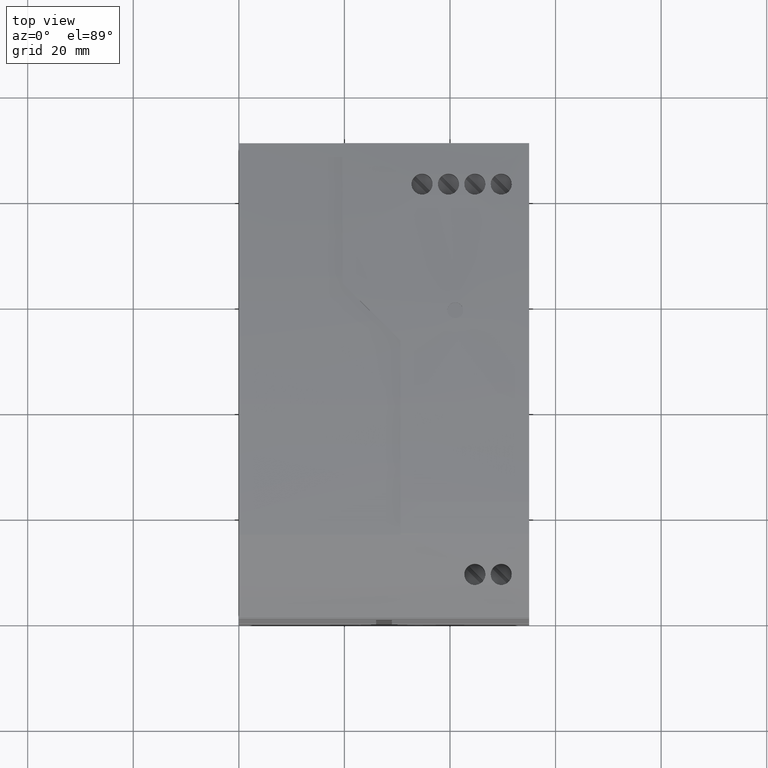
[diagram: clean part render]
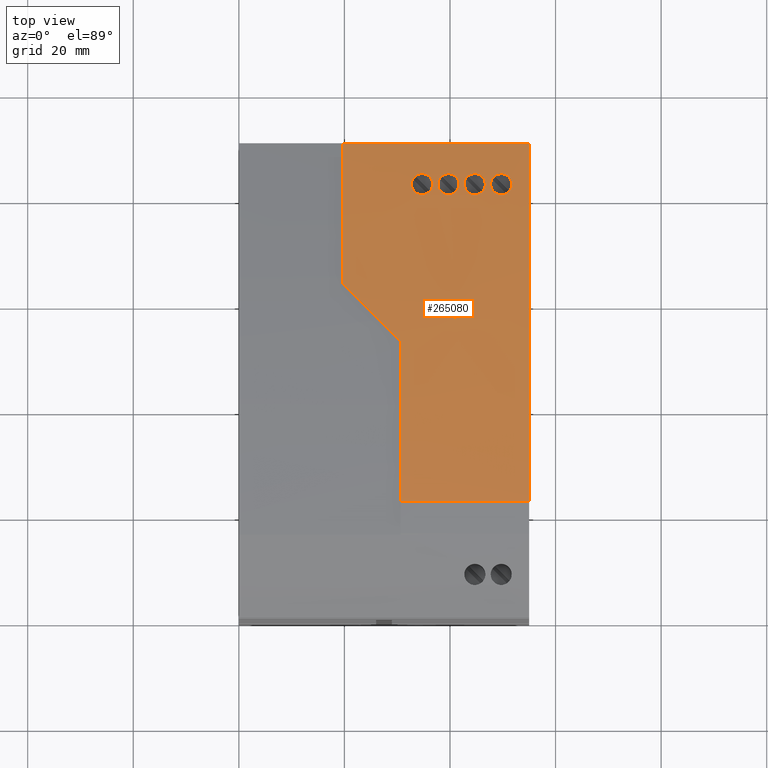
[diagram: same view with one face highlighted and labeled with its STEP entity id]
A machine part, top view. The second image highlights one B-rep face of the part: STEP entity #265080.
In plain terms, the highlighted cylindrical surface (partial cylindrical patch) has radius 350 mm, axis along (1, 0, 0).
Its self-contained STEP definition (entity closure, byte-faithful):
#258770=CARTESIAN_POINT('',(-23.0409203779481,89.8990722762113,1.));
#258780=VERTEX_POINT('',#258770);
#258810=CARTESIAN_POINT('',(-33.8174223565983,-259.934984106395,1.));
#258820=DIRECTION('',(0.,0.,1.));
#258830=DIRECTION('',(0.,1.,0.));
#258840=AXIS2_PLACEMENT_3D('',#258810,#258820,#258830);
#258850=CIRCLE('',#258840,350.000000000006);
#258860=CARTESIAN_POINT('',(44.998476392647,81.0753589982581,1.));
#258870=VERTEX_POINT('',#258860);
#258880=EDGE_CURVE('',#258870,#258780,#258850,.T.);
#260110=CARTESIAN_POINT('',(-23.0409203779481,89.8990722762113,1.));
#260120=DIRECTION('',(0.,0.,-1.));
#260130=VECTOR('',#260120,1.);
#260140=LINE('',#260110,#260130);
#260150=CARTESIAN_POINT('',(-23.0409203779482,89.8990722762115,-23.4));
#260160=VERTEX_POINT('',#260150);
#260170=EDGE_CURVE('',#258780,#260160,#260140,.T.);
#260650=CARTESIAN_POINT('',(44.998476392647,81.0753589982581,1.));
#260660=DIRECTION('',(0.,0.,1.));
#260670=VECTOR('',#260660,1.);
#260680=LINE('',#260650,#260670);
#260690=CARTESIAN_POINT('',(44.998476392647,81.0753589982581,-34.4));
#260700=VERTEX_POINT('',#260690);
#260710=EDGE_CURVE('',#260700,#258870,#260680,.T.);
#261110=CARTESIAN_POINT('',(-33.8174223565983,-259.934984106395,1.));
#261120=DIRECTION('',(0.,0.,1.));
#261130=DIRECTION('',(0.,1.,0.));
#261140=AXIS2_PLACEMENT_3D('',#261110,#261120,#261130);
#261150=CYLINDRICAL_SURFACE('',#261140,350.000000000006);
#261160=CARTESIAN_POINT('',(13.1984817606206,86.6921034492257,-11.5));
#261170=CARTESIAN_POINT('',(13.0055555978401,86.7181688267425,
-11.5000172862122));
#261180=CARTESIAN_POINT('',(12.6154612248136,86.7708727055403,
-11.5756089696318));
#261190=CARTESIAN_POINT('',(12.1127511947706,86.8387915742188,
-11.9088011428697));
#261200=CARTESIAN_POINT('',(11.7787944546882,86.8839109524259,
-12.4093352634621));
#261210=CARTESIAN_POINT('',(11.6588543533701,86.9001155147061,
-13.0000190004568));
#261220=CARTESIAN_POINT('',(11.7787704303386,86.8839141982466,
-13.5906900328923));
#261230=CARTESIAN_POINT('',(12.1127775662568,86.8387880112871,
-14.0912359554955));
#261240=CARTESIAN_POINT('',(12.6154786035389,86.7708703575796,
-14.4243891701172));
#261250=CARTESIAN_POINT('',(13.0055621510402,86.7181679413694,
-14.499987783014));
#261260=CARTESIAN_POINT('',(13.1984826061552,86.6921033349893,
-14.4999999900542));
#261270=B_SPLINE_CURVE_WITH_KNOTS('',3,(#261160,#261170,#261180,#261190,
#261200,#261210,#261220,#261230,#261240,#261250,#261260),.UNSPECIFIED.,
.F.,.F.,(4,1,1,1,1,1,1,1,4),(0.,0.124601525288921,0.250020484171647,
0.375081460448419,0.500001300574072,0.624919263761973,0.74998345534349,
0.87540031799334,1.),.UNSPECIFIED.);
#261280=DIRECTION('',(0.133889013118048,0.990996333074081,0.));
#261290=VECTOR('',#261280,1.);
#261300=SURFACE_OF_LINEAR_EXTRUSION('',#261270,#261290);
#261310=CARTESIAN_POINT('',(13.2251077904162,86.889179350207,-11.5));
#261320=CARTESIAN_POINT('',(12.9994849806847,86.9197823731419,
-11.5000202172649));
#261330=CARTESIAN_POINT('',(12.7738394898481,86.950150535201,
-11.5514706951073));
#261340=CARTESIAN_POINT('',(12.5699462445855,86.9774141071345,
-11.6507310873835));
#261350=CARTESIAN_POINT('',(12.364352396805,87.0049050750222,
-11.7508193760072));
#261360=CARTESIAN_POINT('',(12.1833022051968,87.0289237237714,
-11.8970733423477));
#261370=CARTESIAN_POINT('',(12.0431106938747,87.047452781023,
-12.0772663182131));
#261380=CARTESIAN_POINT('',(11.8389385586279,87.0744381323291,
-12.3396957926652));
#261390=CARTESIAN_POINT('',(11.7251185274894,87.0893334418509,
-12.6667743370374));
#261400=CARTESIAN_POINT('',(11.7251090276306,87.0893346885867,
-13.0000061838202));
#261410=CARTESIAN_POINT('',(11.7250995273647,87.0893359353758,
-13.3332523130715));
#261420=CARTESIAN_POINT('',(11.8389157796215,87.0744411383346,
-13.6603103035183));
#261430=CARTESIAN_POINT('',(12.043102866026,87.0474538156266,
-13.9227439529264));
#261440=CARTESIAN_POINT('',(12.1833007143175,87.0289239240383,
-14.1029347456655));
#261450=CARTESIAN_POINT('',(12.3643499353629,87.0049054045122,
-14.2491829699326));
#261460=CARTESIAN_POINT('',(12.5699468388128,86.9774140276774,
-14.349269950773));
#261470=CARTESIAN_POINT('',(12.773839817471,86.9501504910375,
-14.4485274410662));
#261480=CARTESIAN_POINT('',(12.999486683036,86.9197821427985,
-14.4999857128183));
#261490=CARTESIAN_POINT('',(13.2251086358911,86.8891792355285,
-14.4999999900542));
#261500=B_SPLINE_CURVE_WITH_KNOTS('',3,(#261310,#261320,#261330,#261340,
#261350,#261360,#261370,#261380,#261390,#261400,#261410,#261420,#261430,
#261440,#261450,#261460,#261470,#261480,#261490),.UNSPECIFIED.,.F.,.F.,(
4,3,3,3,3,3,4),(0.,0.683784518436677,1.37118459360683,2.36633691669822,
3.36148932592983,4.04888981220167,4.73267473464276),.UNSPECIFIED.);
#261510=SURFACE_CURVE('',#261500,(#261150,#261300),.CURVE_3D.);
#261520=CARTESIAN_POINT('',(13.2251077923846,86.88917934994,-11.5));
#261530=VERTEX_POINT('',#261520);
#261540=CARTESIAN_POINT('',(13.2251086438858,86.8891792344441,-14.5));
#261550=VERTEX_POINT('',#261540);
#261560=EDGE_CURVE('',#261530,#261550,#261510,.T.);
#261570=ORIENTED_EDGE('',*,*,#261560,.T.);
#261580=CARTESIAN_POINT('',(13.1984817625892,86.6921034489597,-11.5));
#261590=CARTESIAN_POINT('',(13.3913884849968,86.6660406979434,
-11.5000290360754));
#261600=CARTESIAN_POINT('',(13.7814001998191,86.6133479867201,
-11.575844171203));
#261610=CARTESIAN_POINT('',(14.2843524047987,86.5453963988859,
-11.9083232139435));
#261620=CARTESIAN_POINT('',(14.6189250564467,86.5001938076649,
-12.4090424369122));
#261630=CARTESIAN_POINT('',(14.7389975518286,86.4839713582241,
-13.0001792020605));
#261640=CARTESIAN_POINT('',(14.6188661041923,86.5002017724362,
-13.5912793115496));
#261650=CARTESIAN_POINT('',(14.2843255024885,86.5454000335348,
-14.0919121350706));
#261660=CARTESIAN_POINT('',(13.7814075523009,86.6133469933596,
-14.4243060988274));
#261670=CARTESIAN_POINT('',(13.3913969134836,86.6660395592088,
-14.4999714286456));
#261680=CARTESIAN_POINT('',(13.1984826141505,86.6921033339091,-14.5));
#261690=B_SPLINE_CURVE_WITH_KNOTS('',3,(#261580,#261590,#261600,#261610,
#261620,#261630,#261640,#261650,#261660,#261670,#261680),.UNSPECIFIED.,
.F.,.F.,(4,1,1,1,1,1,1,1,4),(0.,0.124580735199533,0.2499639478125,
0.375047362656134,0.500000013310294,0.624952655613596,0.750034170979229,
0.875416818226335,1.),.UNSPECIFIED.);
#261700=DIRECTION('',(0.133889013118048,0.990996333074081,0.));
#261710=VECTOR('',#261700,1.);
#261720=SURFACE_OF_LINEAR_EXTRUSION('',#261690,#261710);
#261730=CARTESIAN_POINT('',(13.2251077923846,86.88917934994,-11.5));
#261740=CARTESIAN_POINT('',(13.4508092628703,86.8585656576177,
-11.5000339746997));
#261750=CARTESIAN_POINT('',(13.6764806633102,86.8277179364559,
-11.5516783160056));
#261760=CARTESIAN_POINT('',(13.8803569800884,86.7996721458367,
-11.6508827282254));
#261770=CARTESIAN_POINT('',(14.0859960687152,86.7713838634413,
-11.750944889633));
#261780=CARTESIAN_POINT('',(14.2670163059993,86.7462914177559,
-11.8970389037577));
#261790=CARTESIAN_POINT('',(14.4072307221891,86.7267859742344,
-12.0773048976902));
#261800=CARTESIAN_POINT('',(14.6113415623534,86.6983918007025,
-12.3397190236728));
#261810=CARTESIAN_POINT('',(14.725051822759,86.6824248628474,
-12.6667749388135));
#261820=CARTESIAN_POINT('',(14.7250589325744,86.6824238671441,
-13.0000692941498));
#261830=CARTESIAN_POINT('',(14.725066042118,86.6824228714789,
-13.3333509056074));
#261840=CARTESIAN_POINT('',(14.6113725594298,86.6983874599416,
-13.6604344133985));
#261850=CARTESIAN_POINT('',(14.4072785555143,86.7267793200634,
-13.9228497492662));
#261860=CARTESIAN_POINT('',(14.2670720962065,86.7462836764113,
-14.1031212143962));
#261870=CARTESIAN_POINT('',(14.086047302858,86.7713767948167,
-14.2492208864151));
#261880=CARTESIAN_POINT('',(13.8803912524074,86.7996674312399,
-14.349249986398));
#261890=CARTESIAN_POINT('',(13.6764909510477,86.82771654178,
-14.448425107123));
#261900=CARTESIAN_POINT('',(13.4508114717162,86.8585653574499,
-14.4999665701758));
#261910=CARTESIAN_POINT('',(13.2251086438858,86.8891792344441,-14.5));
#261920=B_SPLINE_CURVE_WITH_KNOTS('',3,(#261730,#261740,#261750,#261760,
#261770,#261780,#261790,#261800,#261810,#261820,#261830,#261840,#261850,
#261860,#261870,#261880,#261890,#261900,#261910),.UNSPECIFIED.,.F.,.F.,(
4,3,3,3,3,3,4),(0.,0.684060528390628,1.37172166931323,2.36697046026307,
3.36221858739487,4.0498820158736,4.73394187113418),.UNSPECIFIED.);
#261930=SURFACE_CURVE('',#261920,(#261150,#261720),.CURVE_3D.);
#261940=EDGE_CURVE('',#261530,#261550,#261930,.T.);
#261950=ORIENTED_EDGE('',*,*,#261940,.F.);
#261960=EDGE_LOOP('',(#261950,#261570));
#261970=FACE_BOUND('',#261960,.T.);
#261980=CARTESIAN_POINT('',(37.1984763926329,80.1290722762113,-19.3));
#261990=DIRECTION('',(0.,1.,0.));
#262000=DIRECTION('',(0.,0.,-1.));
#262010=AXIS2_PLACEMENT_3D('',#261980,#261990,#262000);
#262020=CYLINDRICAL_SURFACE('',#262010,1.99999999999997);
#262030=CARTESIAN_POINT('',(38.7457318767154,82.4603847987887,
-20.5672807372388));
#262040=CARTESIAN_POINT('',(38.651235389724,82.4804112471078,
-20.6826539165412));
#262050=CARTESIAN_POINT('',(38.5453351913637,82.5028142018425,
-20.7859736227382));
#262060=CARTESIAN_POINT('',(38.4279596874857,82.5275755600726,
-20.8774570763345));
#262070=CARTESIAN_POINT('',(38.3107094020329,82.5523105024136,
-20.9688429336384));
#262080=CARTESIAN_POINT('',(38.1831498237356,82.5791560347972,
-21.0470445547114));
#262090=CARTESIAN_POINT('',(38.0497065265993,82.607153135274,
-21.1098086249732));
#262100=CARTESIAN_POINT('',(37.9166101811473,82.6350774434759,
-21.1724095090702));
#262110=CARTESIAN_POINT('',(37.7770728890483,82.6642710680225,
-21.2200911624479));
#262120=CARTESIAN_POINT('',(37.6338811882307,82.6941320261212,
-21.2520303952475));
#262130=CARTESIAN_POINT('',(37.49094863535,82.723938941942,
-21.2839118245136));
#262140=CARTESIAN_POINT('',(37.3447123081029,82.754340053432,-21.3));
#262150=CARTESIAN_POINT('',(37.1984763926329,82.7846420092442,-21.3));
#262160=B_SPLINE_CURVE_WITH_KNOTS('',3,(#262030,#262040,#262050,#262060,
#262070,#262080,#262090,#262100,#262110,#262120,#262130,#262140,#262150)
,.UNSPECIFIED.,.F.,.F.,(4,3,3,3,4),(0.,0.450039171831812,
0.901944705588504,1.35081921134346,1.79897413478677),.UNSPECIFIED.);
#262170=SURFACE_CURVE('',#262160,(#261150,#262020),.CURVE_3D.);
#262180=CARTESIAN_POINT('',(38.7457318767154,82.4603847987887,
-20.5672807372388));
#262190=VERTEX_POINT('',#262180);
#262200=CARTESIAN_POINT('',(37.1984763926329,82.7846420092442,-21.3));
#262210=VERTEX_POINT('',#262200);
#262220=EDGE_CURVE('',#262190,#262210,#262170,.T.);
#262230=ORIENTED_EDGE('',*,*,#262220,.F.);
#262240=CARTESIAN_POINT('',(37.1984763926329,82.7846420092442,-21.3));
#262250=CARTESIAN_POINT('',(36.9014003252286,82.8461999776708,-21.3));
#262260=CARTESIAN_POINT('',(36.6042573200586,82.9073452104827,
-21.2329441981917));
#262270=CARTESIAN_POINT('',(36.3346332719541,82.9625065392687,
-21.1038223479202));
#262280=CARTESIAN_POINT('',(36.0627982444288,83.0181202036815,
-20.9736416686764));
#262290=CARTESIAN_POINT('',(35.8229653727815,83.0668429856509,
-20.7830528045834));
#262300=CARTESIAN_POINT('',(35.6344580938983,83.1050081713195,
-20.5465338989467));
#262310=CARTESIAN_POINT('',(35.3536460335451,83.161861384017,
-20.1942007604184));
#262320=CARTESIAN_POINT('',(35.1984763515742,83.192988704782,
-19.7530858137162));
#262330=CARTESIAN_POINT('',(35.1984763926329,83.1929886965235,
-19.2999998187596));
#262340=CARTESIAN_POINT('',(35.1984764337913,83.192988688245,
-18.845814686508));
#262350=CARTESIAN_POINT('',(35.3539957063796,83.1617911009571,
-18.4050125929355));
#262360=CARTESIAN_POINT('',(35.6350586850062,83.1048865750902,
-18.0527129153722));
#262370=CARTESIAN_POINT('',(35.8229366135577,83.0668484652783,
-17.8172164655254));
#262380=CARTESIAN_POINT('',(36.0644210407003,83.0177886622212,
-17.6254780069537));
#262390=CARTESIAN_POINT('',(36.3351930724812,82.9623920113936,
-17.4959096726749));
#262400=CARTESIAN_POINT('',(36.6048169033089,82.9072302684584,
-17.3668907691625));
#262410=CARTESIAN_POINT('',(36.901929564606,82.8460903124892,-17.3));
#262420=CARTESIAN_POINT('',(37.1984763926329,82.7846420092442,-17.3));
#262430=B_SPLINE_CURVE_WITH_KNOTS('',3,(#262240,#262250,#262260,#262270,
#262280,#262290,#262300,#262310,#262320,#262330,#262340,#262350,#262360,
#262370,#262380,#262390,#262400,#262410,#262420),.UNSPECIFIED.,.F.,.F.,(
4,3,3,3,3,3,4),(0.,0.910804955498051,1.82463305496484,3.17419705058939,
4.52473154079721,5.43821978694617,6.34839361058266),.UNSPECIFIED.);
#262440=SURFACE_CURVE('',#262430,(#261150,#262020),.CURVE_3D.);
#262450=CARTESIAN_POINT('',(37.1984763926329,82.7846420092442,-17.3));
#262460=VERTEX_POINT('',#262450);
#262470=EDGE_CURVE('',#262210,#262460,#262440,.T.);
#262480=ORIENTED_EDGE('',*,*,#262470,.F.);
#262490=CARTESIAN_POINT('',(37.1984763926329,82.7846420092442,-17.3));
#262500=CARTESIAN_POINT('',(37.5697089201015,82.7077178719196,-17.3));
#262510=CARTESIAN_POINT('',(37.9375626708977,82.6308172601284,
-17.4039836188072));
#262520=CARTESIAN_POINT('',(38.2563748472113,82.5637279446559,
-17.6026930566921));
#262530=CARTESIAN_POINT('',(38.5749052393787,82.4966979264966,
-17.8012268639912));
#262540=CARTESIAN_POINT('',(38.8344595556135,82.4416106213096,
-18.0882793626352));
#262550=CARTESIAN_POINT('',(38.9997665402665,82.4064492626362,
-18.4308890726507));
#262560=CARTESIAN_POINT('',(39.1646597467234,82.3713759159945,
-18.7726411998601));
#262570=CARTESIAN_POINT('',(39.2294146424876,82.3575248970663,
-19.1590294825571));
#262580=CARTESIAN_POINT('',(39.1844322012879,82.3671181820861,
-19.5365999282953));
#262590=CARTESIAN_POINT('',(39.1391997371754,82.3767647888243,
-19.9162689987436));
#262600=CARTESIAN_POINT('',(38.985981768636,82.4094691277687,
-20.2739534957671));
#262610=CARTESIAN_POINT('',(38.7457318767154,82.4603847987887,
-20.5672807372388));
#262620=B_SPLINE_CURVE_WITH_KNOTS('',3,(#262490,#262500,#262510,#262520,
#262530,#262540,#262550,#262560,#262570,#262580,#262590,#262600,#262610)
,.UNSPECIFIED.,.F.,.F.,(4,3,3,3,4),(0.,1.13645894664346,2.27549680070427
,3.41306164092073,4.55277941214885),.UNSPECIFIED.);
#262630=SURFACE_CURVE('',#262620,(#261150,#262020),.CURVE_3D.);
#262640=EDGE_CURVE('',#262460,#262190,#262630,.T.);
#262650=ORIENTED_EDGE('',*,*,#262640,.F.);
#262660=EDGE_LOOP('',(#262650,#262480,#262230));
#262670=FACE_BOUND('',#262660,.T.);
#262680=CARTESIAN_POINT('',(37.1984763926329,80.1290722762113,
-4.29999999999999));
#262690=DIRECTION('',(0.,-1.,0.));
#262700=DIRECTION('',(0.,0.,-1.));
#262710=AXIS2_PLACEMENT_3D('',#262680,#262690,#262700);
#262720=CYLINDRICAL_SURFACE('',#262710,1.99999999999998);
#262730=CARTESIAN_POINT('',(38.2124243590828,82.5729737312588,
-6.02392271327117));
#262740=CARTESIAN_POINT('',(38.1355887191296,82.5891323612745,
-6.06911461212003));
#262750=CARTESIAN_POINT('',(38.0562937115018,82.6057811145165,
-6.10884821932043));
#262760=CARTESIAN_POINT('',(37.9749963317338,82.6228192186552,
-6.14309977596949));
#262770=CARTESIAN_POINT('',(37.8935260593613,82.639893557199,
-6.17742417433689));
#262780=CARTESIAN_POINT('',(37.8094075858307,82.6574923309597,
-6.2064800564619));
#262790=CARTESIAN_POINT('',(37.7236274002445,82.6754042353678,
-6.22982289840399));
#262800=CARTESIAN_POINT('',(37.6378483907851,82.6933158941868,
-6.25316542029385));
#262810=CARTESIAN_POINT('',(37.550458513784,82.7115300167772,
-6.27077955233271));
#262820=CARTESIAN_POINT('',(37.4625588035147,82.7298146194421,
-6.28248845652699));
#262830=CARTESIAN_POINT('',(37.3746394698394,82.7481033041021,
-6.2941999747069));
#262840=CARTESIAN_POINT('',(37.2863394077403,82.7664356664811,
-6.29999999999997));
#262850=CARTESIAN_POINT('',(37.1984763926329,82.7846420092441,
-6.29999999999997));
#262860=B_SPLINE_CURVE_WITH_KNOTS('',3,(#262730,#262740,#262750,#262760,
#262770,#262780,#262790,#262800,#262810,#262820,#262830,#262840,#262850)
,.UNSPECIFIED.,.F.,.F.,(4,3,3,3,4),(0.,0.270489618847431,
0.541740849947553,0.81376320532357,1.08423443937792),.UNSPECIFIED.);
#262870=SURFACE_CURVE('',#262860,(#261150,#262720),.CURVE_3D.);
#262880=CARTESIAN_POINT('',(38.2124243590828,82.5729737312588,
-6.02392271327118));
#262890=VERTEX_POINT('',#262880);
#262900=CARTESIAN_POINT('',(37.1984763926329,82.7846420092441,
-6.29999999999997));
#262910=VERTEX_POINT('',#262900);
#262920=EDGE_CURVE('',#262890,#262910,#262870,.T.);
#262930=ORIENTED_EDGE('',*,*,#262920,.F.);
#262940=CARTESIAN_POINT('',(37.1984763926329,82.7846420092441,
-6.29999999999997));
#262950=CARTESIAN_POINT('',(36.9022198721218,82.8460301570513,
-6.29999999999997));
#262960=CARTESIAN_POINT('',(36.6042504835483,82.9073461209541,
-6.23283144915077));
#262970=CARTESIAN_POINT('',(36.3352298575279,82.9623844856203,
-6.10410792904115));
#262980=CARTESIAN_POINT('',(36.0650497379653,83.0176600686341,
-5.97482960355279));
#262990=CARTESIAN_POINT('',(35.8239966275795,83.0666331591461,
-5.78364181279449));
#263000=CARTESIAN_POINT('',(35.6362725728311,83.1046408069003,
-5.54880712097449));
#263010=CARTESIAN_POINT('',(35.3538925334926,83.1618130274895,
-5.19556187702831));
#263020=CARTESIAN_POINT('',(35.1982375546838,83.193036735791,
-4.75338726906196));
#263030=CARTESIAN_POINT('',(35.198476669483,83.1929886408406,
-4.29894765000229));
#263040=CARTESIAN_POINT('',(35.1987161285616,83.1929404766427,
-3.84385372494033));
#263050=CARTESIAN_POINT('',(35.35524974142,83.1615397615233,
-3.40171305830453));
#263060=CARTESIAN_POINT('',(35.6380514689188,83.1042806369831,
-3.04897080071977));
#263070=CARTESIAN_POINT('',(35.8263781640108,83.0661499587023,
-2.81406847470585));
#263080=CARTESIAN_POINT('',(36.0669450160822,83.0172746463475,
-2.62374203495453));
#263090=CARTESIAN_POINT('',(36.3380715378944,82.9618030999367,
-2.49453510531427));
#263100=CARTESIAN_POINT('',(36.6072805827972,82.906723862654,
-2.36624196050953));
#263110=CARTESIAN_POINT('',(36.9024232087697,82.845988023092,
-2.30000000000001));
#263120=CARTESIAN_POINT('',(37.1984763926329,82.7846420092442,
-2.30000000000001));
#263130=B_SPLINE_CURVE_WITH_KNOTS('',3,(#262940,#262950,#262960,#262970,
#262980,#262990,#263000,#263010,#263020,#263030,#263040,#263050,#263060,
#263070,#263080,#263090,#263100,#263110,#263120),.UNSPECIFIED.,.F.,.F.,(
4,3,3,3,3,3,4),(0.,0.910132354506713,1.82170133804236,3.17524869701435,
4.5295604452285,5.44146259901861,6.34839260190238),.UNSPECIFIED.);
#263140=SURFACE_CURVE('',#263130,(#261150,#262720),.CURVE_3D.);
#263150=CARTESIAN_POINT('',(37.1984763926329,82.7846420092442,
-2.30000000000001));
#263160=VERTEX_POINT('',#263150);
#263170=EDGE_CURVE('',#262910,#263160,#263140,.T.);
#263180=ORIENTED_EDGE('',*,*,#263170,.F.);
#263190=CARTESIAN_POINT('',(37.1984763926329,82.7846420092442,
-2.30000000000001));
#263200=CARTESIAN_POINT('',(37.6285092871543,82.695533682294,
-2.30000000000001));
#263210=CARTESIAN_POINT('',(38.0527681697956,82.6066964579263,
-2.43960306785203));
#263220=CARTESIAN_POINT('',(38.4017581050258,82.5331019592352,
-2.70246655101661));
#263230=CARTESIAN_POINT('',(38.7491663453482,82.4598410061055,
-2.96413868225148));
#263240=CARTESIAN_POINT('',(39.0066059598356,82.4050158491557,
-3.3380265974937));
#263250=CARTESIAN_POINT('',(39.1250653781451,82.3797738037356,
-3.76310626665703));
#263260=CARTESIAN_POINT('',(39.2438764280901,82.3544568305316,
-4.18944773046197));
#263270=CARTESIAN_POINT('',(39.2171198933543,82.3601874076889,
-4.6452969430809));
#263280=CARTESIAN_POINT('',(39.0511228788721,82.3955215679762,
-5.05345935326691));
#263290=CARTESIAN_POINT('',(38.8847998941981,82.4309251143489,
-5.46242327653774));
#263300=CARTESIAN_POINT('',(38.5878766028957,82.4940156604985,
-5.80309550554168));
#263310=CARTESIAN_POINT('',(38.2124243590828,82.5729737312588,
-6.02392271327117));
#263320=B_SPLINE_CURVE_WITH_KNOTS('',3,(#263190,#263200,#263210,#263220,
#263230,#263240,#263250,#263260,#263270,#263280,#263290,#263300,#263310)
,.UNSPECIFIED.,.F.,.F.,(4,3,3,3,4),(0.,1.31549882530681,2.6320467450043,
3.94923049394239,5.26750867932418),.UNSPECIFIED.);
#263330=SURFACE_CURVE('',#263320,(#261150,#262720),.CURVE_3D.);
#263340=EDGE_CURVE('',#263160,#262890,#263330,.T.);
#263350=ORIENTED_EDGE('',*,*,#263340,.F.);
#263360=EDGE_LOOP('',(#263350,#263180,#262930));
#263370=FACE_BOUND('',#263360,.T.);
#263380=CARTESIAN_POINT('',(37.1984763926329,80.1290722762113,-9.3));
#263390=DIRECTION('',(0.,-1.,0.));
#263400=DIRECTION('',(0.,0.,-1.));
#263410=AXIS2_PLACEMENT_3D('',#263380,#263390,#263400);
#263420=CYLINDRICAL_SURFACE('',#263410,1.99999999999999);
#263430=CARTESIAN_POINT('',(35.9311956553943,83.044797054859,
-7.75274451591729));
#263440=CARTESIAN_POINT('',(36.020505111017,83.0266350189395,
-7.67959554089134));
#263450=CARTESIAN_POINT('',(36.1163725522379,83.0071025878325,
-7.61408006364859));
#263460=CARTESIAN_POINT('',(36.2167531583835,82.9866020615529,
-7.55752489506012));
#263470=CARTESIAN_POINT('',(36.3172187516942,82.9660841785179,
-7.50092184408037));
#263480=CARTESIAN_POINT('',(36.4216153554369,82.9447172217389,
-7.45352841734165));
#263490=CARTESIAN_POINT('',(36.5289314908513,82.9226984681303,
-7.41540199923212));
#263500=CARTESIAN_POINT('',(36.6364406680203,82.900640106882,
-7.37720699879231));
#263510=CARTESIAN_POINT('',(36.7472511308003,82.8778510192482,
-7.34825578931552));
#263520=CARTESIAN_POINT('',(36.8592254700604,82.8547640658498,
-7.32898279775805));
#263530=CARTESIAN_POINT('',(36.9713202013282,82.8316522899368,
-7.30968908436233));
#263540=CARTESIAN_POINT('',(37.0849014576514,82.8081761913233,
-7.30000000000001));
#263550=CARTESIAN_POINT('',(37.1984763926329,82.7846420092442,
-7.30000000000001));
#263560=B_SPLINE_CURVE_WITH_KNOTS('',3,(#263430,#263440,#263450,#263460,
#263470,#263480,#263490,#263500,#263510,#263520,#263530,#263540,#263550)
,.UNSPECIFIED.,.F.,.F.,(4,3,3,3,4),(0.,0.35120373023298,
0.700531232207715,1.04904605481684,1.3970827915383),.UNSPECIFIED.);
#263570=SURFACE_CURVE('',#263560,(#261150,#263420),.CURVE_3D.);
#263580=CARTESIAN_POINT('',(35.9311956553943,83.044797054859,
-7.75274451591729));
#263590=VERTEX_POINT('',#263580);
#263600=CARTESIAN_POINT('',(37.1984763926329,82.7846420092442,
-7.30000000000001));
#263610=VERTEX_POINT('',#263600);
#263620=EDGE_CURVE('',#263590,#263610,#263570,.T.);
#263630=ORIENTED_EDGE('',*,*,#263620,.F.);
#263640=CARTESIAN_POINT('',(37.1984763926329,82.7846420092442,
-7.30000000000001));
#263650=CARTESIAN_POINT('',(37.4961463098762,82.7229609875203,
-7.30000000000001));
#263660=CARTESIAN_POINT('',(37.7936485234097,82.6608865131233,
-7.3672916926736));
#263670=CARTESIAN_POINT('',(38.0635206162501,82.6042545763268,
-7.49675334710226));
#263680=CARTESIAN_POINT('',(38.3355833363076,82.5471629422684,
-7.62726587796939));
#263690=CARTESIAN_POINT('',(38.5754650412523,82.4964790795566,
-7.81823322762953));
#263700=CARTESIAN_POINT('',(38.7639561588967,82.4565220569369,
-8.0553020039308));
#263710=CARTESIAN_POINT('',(39.0434318321506,82.397277802155,
-8.40680374413102));
#263720=CARTESIAN_POINT('',(39.1981441028853,82.3641935945167,
-8.84656654092151));
#263730=CARTESIAN_POINT('',(39.19847585385,82.3641228286451,
-9.29853196346973));
#263740=CARTESIAN_POINT('',(39.1988084354584,82.3640518855886,
-9.75162902465869));
#263750=CARTESIAN_POINT('',(39.044384919327,82.3970747382394,
-10.1912995508494));
#263760=CARTESIAN_POINT('',(38.7651564820738,82.4562676059297,
-10.5431868312323));
#263770=CARTESIAN_POINT('',(38.5776636390645,82.4960136975467,
-10.7794677317983));
#263780=CARTESIAN_POINT('',(38.3363412056098,82.5470022051456,
-10.9719897019966));
#263790=CARTESIAN_POINT('',(38.0655730697694,82.6038238680261,
-11.1022606228009));
#263800=CARTESIAN_POINT('',(37.7960228823833,82.6603899400622,
-11.2319455689442));
#263810=CARTESIAN_POINT('',(37.4965129087698,82.7228850235313,-11.3));
#263820=CARTESIAN_POINT('',(37.1984763926329,82.7846420092442,-11.3));
#263830=B_SPLINE_CURVE_WITH_KNOTS('',3,(#263640,#263650,#263660,#263670,
#263680,#263690,#263700,#263710,#263720,#263730,#263740,#263750,#263760,
#263770,#263780,#263790,#263800,#263810,#263820),.UNSPECIFIED.,.F.,.F.,(
4,3,3,3,3,3,4),(0.,0.912600569074767,1.82825693375223,3.1743871375938,
4.52150659964054,5.43679212056496,6.35171015852321),.UNSPECIFIED.);
#263840=SURFACE_CURVE('',#263830,(#261150,#263420),.CURVE_3D.);
#263850=CARTESIAN_POINT('',(37.1984763926329,82.7846420092442,-11.3));
#263860=VERTEX_POINT('',#263850);
#263870=EDGE_CURVE('',#263610,#263860,#263840,.T.);
#263880=ORIENTED_EDGE('',*,*,#263870,.F.);
#263890=CARTESIAN_POINT('',(37.1984763926329,82.7846420092442,-11.3));
#263900=CARTESIAN_POINT('',(36.7938362905769,82.8684886241672,-11.3));
#263910=CARTESIAN_POINT('',(36.3934566846473,82.9506384642993,
-11.1760355551515));
#263920=CARTESIAN_POINT('',(36.057286766752,83.0191309366115,
-10.942463466194));
#263930=CARTESIAN_POINT('',(35.7208176644956,83.0876843658252,
-10.7086835028478));
#263940=CARTESIAN_POINT('',(35.4608415643451,83.1401432993376,
-10.3734202224718));
#263950=CARTESIAN_POINT('',(35.3191341403167,83.168697826273,
-9.98415838711453));
#263960=CARTESIAN_POINT('',(35.1774317528141,83.1972513383313,
-9.59491038679268));
#263970=CARTESIAN_POINT('',(35.1599360986427,83.2007569559177,
-9.16819210054977));
#263980=CARTESIAN_POINT('',(35.2707337166888,83.1784471235667,
-8.76726350289876));
#263990=CARTESIAN_POINT('',(35.381012759571,83.1562417097508,
-8.36821140419131));
#264000=CARTESIAN_POINT('',(35.6146664258594,83.1091666694342,
-8.01199801315105));
#264010=CARTESIAN_POINT('',(35.9311956553943,83.044797054859,
-7.75274451591729));
#264020=B_SPLINE_CURVE_WITH_KNOTS('',3,(#263890,#263900,#263910,#263920,
#263930,#263940,#263950,#263960,#263970,#263980,#263990,#264000,#264010)
,.UNSPECIFIED.,.F.,.F.,(4,3,3,3,4),(0.,1.23699307380883,2.47542169574247
,3.71371680086392,4.9513414771357),.UNSPECIFIED.);
#264030=SURFACE_CURVE('',#264020,(#261150,#263420),.CURVE_3D.);
#264040=EDGE_CURVE('',#263860,#263590,#264030,.T.);
#264050=ORIENTED_EDGE('',*,*,#264040,.F.);
#264060=EDGE_LOOP('',(#264050,#263880,#263630));
#264070=FACE_BOUND('',#264060,.T.);
#264080=CARTESIAN_POINT('',(37.1984763926329,80.1290722762113,-14.3));
#264090=DIRECTION('',(0.,1.,0.));
#264100=DIRECTION('',(0.,0.,-1.));
#264110=AXIS2_PLACEMENT_3D('',#264080,#264090,#264100);
#264120=CYLINDRICAL_SURFACE('',#264110,1.99999999999997);
#264130=CARTESIAN_POINT('',(38.2124243590854,82.5729737312582,
-16.0239227132697));
#264140=CARTESIAN_POINT('',(38.1352382801497,82.5892060590249,
-16.0693207274457));
#264150=CARTESIAN_POINT('',(38.0552580462364,82.6059985203877,
-16.1093586719138));
#264160=CARTESIAN_POINT('',(37.9735630408229,82.6231196010955,
-16.143702982532));
#264170=CARTESIAN_POINT('',(37.8919669492767,82.6402199521112,
-16.1780057100869));
#264180=CARTESIAN_POINT('',(37.8079508744464,82.6577968135585,
-16.2069320399184));
#264190=CARTESIAN_POINT('',(37.7224510633884,82.6756498661319,
-16.2301426228149));
#264200=CARTESIAN_POINT('',(37.6369199639446,82.6935094519735,
-16.2533616995508));
#264210=CARTESIAN_POINT('',(37.5501897334605,82.7115859157162,
-16.2708133592034));
#264220=CARTESIAN_POINT('',(37.4626031985502,82.7298053845329,
-16.2824825422676));
#264230=CARTESIAN_POINT('',(37.3750243287899,82.7480232588697,
-16.2941507041013));
#264240=CARTESIAN_POINT('',(37.2867685544033,82.7663467417927,-16.3));
#264250=CARTESIAN_POINT('',(37.1984763926329,82.7846420092442,-16.3));
#264260=B_SPLINE_CURVE_WITH_KNOTS('',3,(#264130,#264140,#264150,#264160,
#264170,#264180,#264190,#264200,#264210,#264220,#264230,#264240,#264250)
,.UNSPECIFIED.,.F.,.F.,(4,3,3,3,4),(0.,0.272073415459352,
0.542984364007272,0.813717475808199,1.08423443930886),.UNSPECIFIED.);
#264270=SURFACE_CURVE('',#264260,(#261150,#264120),.CURVE_3D.);
#264280=CARTESIAN_POINT('',(38.2124243590853,82.5729737312582,
-16.0239227132698));
#264290=VERTEX_POINT('',#264280);
#264300=CARTESIAN_POINT('',(37.1984763926329,82.7846420092442,-16.3));
#264310=VERTEX_POINT('',#264300);
#264320=EDGE_CURVE('',#264290,#264310,#264270,.T.);
#264330=ORIENTED_EDGE('',*,*,#264320,.F.);
#264340=CARTESIAN_POINT('',(37.1984763926329,82.7846420092442,-16.3));
#264350=CARTESIAN_POINT('',(36.9014003252164,82.8461999776733,-16.3));
#264360=CARTESIAN_POINT('',(36.6042573200223,82.9073452104901,
-16.2329441981743));
#264370=CARTESIAN_POINT('',(36.3346332719542,82.9625065392687,
-16.1038223479202));
#264380=CARTESIAN_POINT('',(36.0627982445313,83.0181202036605,
-15.9736416687255));
#264390=CARTESIAN_POINT('',(35.822965372618,83.066842985684,
-15.7830528043782));
#264400=CARTESIAN_POINT('',(35.6344580938984,83.1050081713195,
-15.5465338989468));
#264410=CARTESIAN_POINT('',(35.3536460342063,83.1618613838832,
-15.194200761248));
#264420=CARTESIAN_POINT('',(35.1984763515743,83.192988704782,
-14.7530858147756));
#264430=CARTESIAN_POINT('',(35.198476392633,83.1929886965235,
-14.2999998187597));
#264440=CARTESIAN_POINT('',(35.1984764337913,83.192988688245,
-13.8458146865081));
#264450=CARTESIAN_POINT('',(35.3539957063796,83.1617911009571,
-13.4050125929356));
#264460=CARTESIAN_POINT('',(35.6350586850062,83.1048865750902,
-13.0527129153723));
#264470=CARTESIAN_POINT('',(35.8229366133757,83.0668484653151,
-12.8172164657535));
#264480=CARTESIAN_POINT('',(36.0644210411505,83.0177886621291,
-12.6254780067384));
#264490=CARTESIAN_POINT('',(36.3351930724811,82.9623920113937,
-12.495909672675));
#264500=CARTESIAN_POINT('',(36.6048169034404,82.9072302684315,
-12.3668907690996));
#264510=CARTESIAN_POINT('',(36.9019295643167,82.8460903125491,-12.3));
#264520=CARTESIAN_POINT('',(37.1984763926329,82.7846420092441,-12.3));
#264530=B_SPLINE_CURVE_WITH_KNOTS('',3,(#264340,#264350,#264360,#264370,
#264380,#264390,#264400,#264410,#264420,#264430,#264440,#264450,#264460,
#264470,#264480,#264490,#264500,#264510,#264520),.UNSPECIFIED.,.F.,.F.,(
4,3,3,3,3,3,4),(0.,0.910804955497985,1.82463305496476,3.17419705058927,
4.52473154079706,5.43821978694599,6.34839361058265),.UNSPECIFIED.);
#264540=SURFACE_CURVE('',#264530,(#261150,#264120),.CURVE_3D.);
#264550=CARTESIAN_POINT('',(37.1984763926329,82.7846420092441,-12.3));
#264560=VERTEX_POINT('',#264550);
#264570=EDGE_CURVE('',#264310,#264560,#264540,.T.);
#264580=ORIENTED_EDGE('',*,*,#264570,.F.);
#264590=CARTESIAN_POINT('',(37.1984763926329,82.7846420092441,-12.3));
#264600=CARTESIAN_POINT('',(37.6286210295958,82.695510527828,-12.3));
#264610=CARTESIAN_POINT('',(38.0529176889392,82.6066650672001,
-12.4396707573583));
#264620=CARTESIAN_POINT('',(38.4018893488432,82.5330742827003,
-12.7025654139135));
#264630=CARTESIAN_POINT('',(38.7493349862881,82.4598053042462,
-12.9643104551952));
#264640=CARTESIAN_POINT('',(39.006749297474,82.404985332857,
-13.3383127162959));
#264650=CARTESIAN_POINT('',(39.1251399336442,82.3797579169929,
-13.763373873411));
#264660=CARTESIAN_POINT('',(39.2438443457612,82.3544636397912,
-14.1895615889379));
#264670=CARTESIAN_POINT('',(39.217351971252,82.3601380848492,
-14.6449628803861));
#264680=CARTESIAN_POINT('',(39.050970641729,82.3955539731754,
-15.0538335738517));
#264690=CARTESIAN_POINT('',(38.8847825956268,82.4309287192408,
-15.4622292865819));
#264700=CARTESIAN_POINT('',(38.5878118757161,82.4940292727043,
-15.8031335756886));
#264710=CARTESIAN_POINT('',(38.2124243590854,82.5729737312582,
-16.0239227132697));
#264720=B_SPLINE_CURVE_WITH_KNOTS('',3,(#264590,#264600,#264610,#264620,
#264630,#264640,#264650,#264660,#264670,#264680,#264690,#264700,#264710)
,.UNSPECIFIED.,.F.,.F.,(4,3,3,3,4),(0.,1.31566547241426,2.63232500080504
,3.94963577593777,5.26750867506019),.UNSPECIFIED.);
#264730=SURFACE_CURVE('',#264720,(#261150,#264120),.CURVE_3D.);
#264740=EDGE_CURVE('',#264560,#264290,#264730,.T.);
#264750=ORIENTED_EDGE('',*,*,#264740,.F.);
#264760=EDGE_LOOP('',(#264750,#264580,#264330));
#264770=FACE_BOUND('',#264760,.T.);
#264780=CARTESIAN_POINT('',(-33.8174223565983,-259.934984106395,-34.4));
#264790=DIRECTION('',(0.,0.,1.));
#264800=DIRECTION('',(0.,1.,0.));
#264810=AXIS2_PLACEMENT_3D('',#264780,#264790,#264800);
#264820=CIRCLE('',#264810,350.000000000006);
#264830=CARTESIAN_POINT('',(18.3984763926468,86.1480982854103,-34.4));
#264840=VERTEX_POINT('',#264830);
#264850=EDGE_CURVE('',#260700,#264840,#264820,.T.);
#264860=ORIENTED_EDGE('',*,*,#264850,.T.);
#264870=ORIENTED_EDGE('',*,*,#260710,.F.);
#264880=ORIENTED_EDGE('',*,*,#258880,.F.);
#264890=ORIENTED_EDGE('',*,*,#260170,.F.);
#264900=CARTESIAN_POINT('',(-33.8174223565983,-259.934984106395,-23.4));
#264910=DIRECTION('',(0.,0.,1.));
#264920=DIRECTION('',(0.,1.,0.));
#264930=AXIS2_PLACEMENT_3D('',#264900,#264910,#264920);
#264940=CIRCLE('',#264930,350.000000000006);
#264950=CARTESIAN_POINT('',(7.39847639264682,87.6297576185051,-23.4));
#264960=VERTEX_POINT('',#264950);
#264970=EDGE_CURVE('',#264960,#260160,#264940,.T.);
#264980=ORIENTED_EDGE('',*,*,#264970,.T.);
#264990=CARTESIAN_POINT('',(-33.8174223565983,-259.934984106395,
17.8158987492451));
#265000=DIRECTION('',(0.707106781186548,0.,0.707106781186548));
#265010=DIRECTION('',(0.707106781186548,0.,-0.707106781186548));
#265020=AXIS2_PLACEMENT_3D('',#264990,#265000,#265010);
#265030=ELLIPSE('',#265020,494.974746830592,350.000000000006);
#265040=EDGE_CURVE('',#264840,#264960,#265030,.T.);
#265050=ORIENTED_EDGE('',*,*,#265040,.T.);
#265060=EDGE_LOOP('',(#265050,#264980,#264890,#264880,#264870,#264860));
#265070=FACE_OUTER_BOUND('',#265060,.T.);
#265080=ADVANCED_FACE('',(#261970,#262670,#263370,#264070,#264770,
#265070),#261150,.T.);